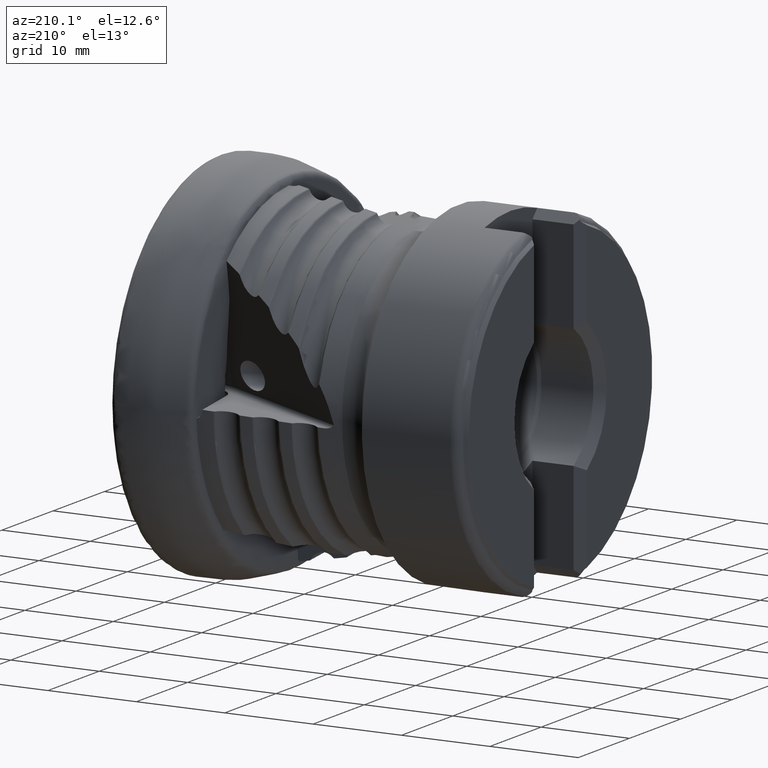
[diagram: clean part render]
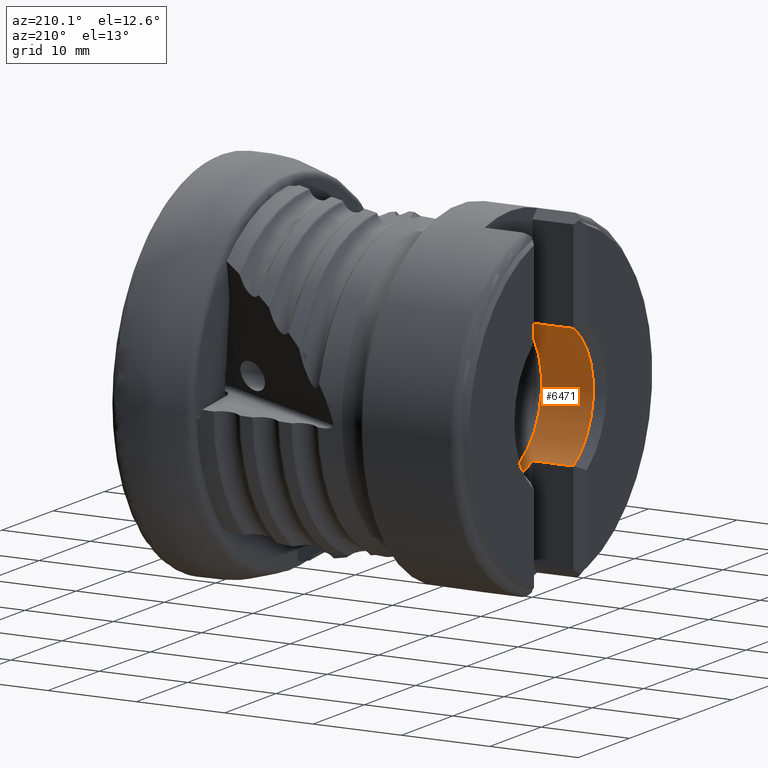
[diagram: same view with one face highlighted and labeled with its STEP entity id]
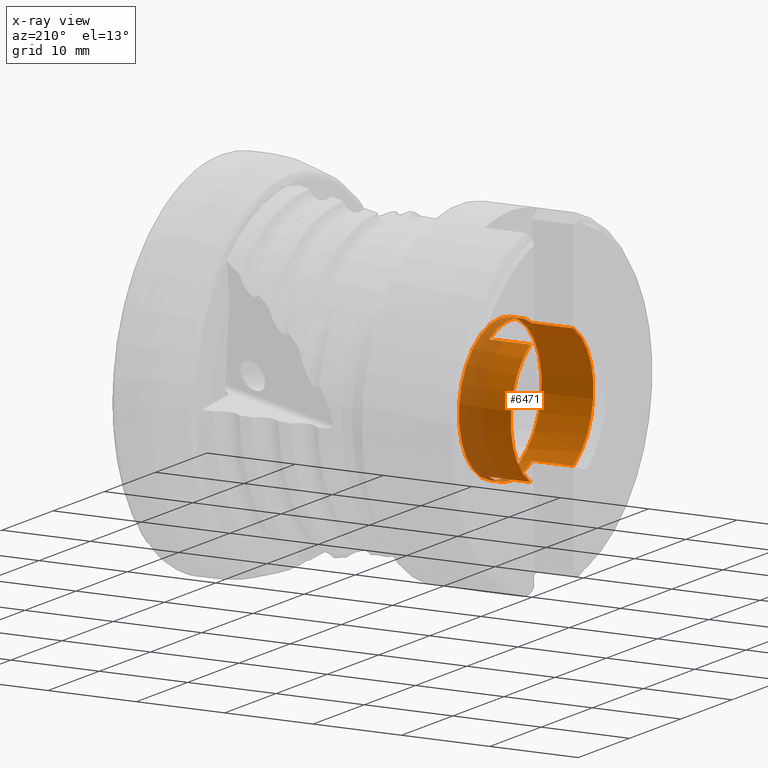
[diagram: x-ray of the same camera — body ghosted, the highlighted face saturated]
A machine part, auxiliary view. The second image highlights one B-rep face of the part: STEP entity #6471.
The next image is the same camera in x-ray: the body ghosted, the highlighted face saturated — about 26% of this face is hidden behind the body in this view.
In plain terms, the highlighted cylindrical surface (bore or boss wall) has radius 8.075 mm, axis along (1, -0, -0).
Its self-contained STEP definition (entity closure, byte-faithful):
#28 = CARTESIAN_POINT ( 'NONE',  ( 1.566847010559693400E-015, -4.199999999999992200, -6.896783670668521700 ) ) ;
#45 = ORIENTED_EDGE ( 'NONE', *, *, #5000, .T. ) ;
#64 = CYLINDRICAL_SURFACE ( 'NONE', #952, 8.074999999999994000 ) ;
#170 = CIRCLE ( 'NONE', #5270, 8.074999999999994000 ) ;
#442 = DIRECTION ( 'NONE',  ( -1.000000000000000000, 0.0000000000000000000, 0.0000000000000000000 ) ) ;
#536 = AXIS2_PLACEMENT_3D ( 'NONE', #1094, #5467, #1732 ) ;
#578 = VECTOR ( 'NONE', #3783, 1000.000000000000000 ) ;
#664 = LINE ( 'NONE', #6246, #5657 ) ;
#700 = CIRCLE ( 'NONE', #3487, 8.074999999999994000 ) ;
#706 = CARTESIAN_POINT ( 'NONE',  ( -38.04999999999999700, -4.200000000000005500, 6.896783670668512800 ) ) ;
#952 = AXIS2_PLACEMENT_3D ( 'NONE', #7216, #2910, #2854 ) ;
#1044 = VERTEX_POINT ( 'NONE', #4617 ) ;
#1061 = DIRECTION ( 'NONE',  ( -1.000000000000000000, -0.0000000000000000000, -0.0000000000000000000 ) ) ;
#1067 = LINE ( 'NONE', #4811, #4376 ) ;
#1094 = CARTESIAN_POINT ( 'NONE',  ( -38.04999999999999700, 0.0000000000000000000, 0.0000000000000000000 ) ) ;
#1169 = LINE ( 'NONE', #7389, #7418 ) ;
#1178 = VERTEX_POINT ( 'NONE', #2956 ) ;
#1224 = ORIENTED_EDGE ( 'NONE', *, *, #1465, .T. ) ;
#1463 = DIRECTION ( 'NONE',  ( -1.000000000000000000, -0.0000000000000000000, -0.0000000000000000000 ) ) ;
#1465 = EDGE_CURVE ( 'NONE', #1044, #1044, #700, .T. ) ;
#1732 = DIRECTION ( 'NONE',  ( 0.0000000000000000000, 0.0000000000000000000, -1.000000000000000000 ) ) ;
#1886 = DIRECTION ( 'NONE',  ( 1.000000000000000000, -0.0000000000000000000, -0.0000000000000000000 ) ) ;
#1914 = DIRECTION ( 'NONE',  ( 1.000000000000000000, -0.0000000000000000000, -0.0000000000000000000 ) ) ;
#1947 = FACE_OUTER_BOUND ( 'NONE', #6946, .T. ) ;
#2337 = CARTESIAN_POINT ( 'NONE',  ( -33.39999999999999900, 4.199999999999995700, -6.896783670668519900 ) ) ;
#2518 = VERTEX_POINT ( 'NONE', #2897 ) ;
#2563 = ORIENTED_EDGE ( 'NONE', *, *, #5688, .F. ) ;
#2641 = VERTEX_POINT ( 'NONE', #7972 ) ;
#2854 = DIRECTION ( 'NONE',  ( 0.0000000000000000000, 0.0000000000000000000, -1.000000000000000000 ) ) ;
#2897 = CARTESIAN_POINT ( 'NONE',  ( -38.04999999999999700, 4.199999999999997500, 6.896783670668519100 ) ) ;
#2910 = DIRECTION ( 'NONE',  ( 1.000000000000000000, -0.0000000000000000000, -0.0000000000000000000 ) ) ;
#2956 = CARTESIAN_POINT ( 'NONE',  ( -38.04999999999999700, -4.200000000000005500, -6.896783670668512800 ) ) ;
#3099 = AXIS2_PLACEMENT_3D ( 'NONE', #5648, #1914, #6269 ) ;
#3238 = DIRECTION ( 'NONE',  ( 1.000000000000000000, -0.0000000000000000000, -0.0000000000000000000 ) ) ;
#3410 = FACE_OUTER_BOUND ( 'NONE', #3729, .T. ) ;
#3487 = AXIS2_PLACEMENT_3D ( 'NONE', #6979, #3238, #7591 ) ;
#3629 = CARTESIAN_POINT ( 'NONE',  ( -38.04999999999999700, 4.199999999999997500, -6.896783670668518200 ) ) ;
#3729 = EDGE_LOOP ( 'NONE', ( #1224 ) ) ;
#3783 = DIRECTION ( 'NONE',  ( -1.000000000000000000, 0.0000000000000000000, 0.0000000000000000000 ) ) ;
#3947 = EDGE_CURVE ( 'NONE', #6630, #6545, #664, .T. ) ;
#4027 = VERTEX_POINT ( 'NONE', #6318 ) ;
#4157 = ORIENTED_EDGE ( 'NONE', *, *, #4630, .T. ) ;
#4216 = CARTESIAN_POINT ( 'NONE',  ( -33.39999999999999900, 4.199999999999995700, 6.896783670668519900 ) ) ;
#4376 = VECTOR ( 'NONE', #442, 1000.000000000000000 ) ;
#4476 = CIRCLE ( 'NONE', #5428, 8.074999999999994000 ) ;
#4617 = CARTESIAN_POINT ( 'NONE',  ( -32.18000000000000000, 0.0000000000000000000, -8.074999999999994000 ) ) ;
#4630 = EDGE_CURVE ( 'NONE', #6545, #2641, #4476, .T. ) ;
#4733 = EDGE_CURVE ( 'Kante3', #7971, #4027, #1169, .T. ) ;
#4771 = ORIENTED_EDGE ( 'NONE', *, *, #6539, .F. ) ;
#4792 = CARTESIAN_POINT ( 'NONE',  ( -33.39999999999999900, 0.0000000000000000000, 0.0000000000000000000 ) ) ;
#4811 = CARTESIAN_POINT ( 'NONE',  ( 1.566847010559690100E-015, 4.199999999999983300, 6.896783670668527000 ) ) ;
#4866 = CIRCLE ( 'NONE', #536, 8.074999999999994000 ) ;
#4896 = EDGE_CURVE ( 'NONE', #2641, #1178, #7031, .T. ) ;
#5000 = EDGE_CURVE ( 'NONE', #4027, #5306, #170, .T. ) ;
#5199 = CARTESIAN_POINT ( 'NONE',  ( -33.39999999999999900, 0.0000000000000000000, 0.0000000000000000000 ) ) ;
#5204 = ORIENTED_EDGE ( 'NONE', *, *, #4896, .T. ) ;
#5262 = EDGE_CURVE ( 'NONE', #5306, #2518, #1067, .T. ) ;
#5270 = AXIS2_PLACEMENT_3D ( 'NONE', #5199, #1463, #5826 ) ;
#5306 = VERTEX_POINT ( 'NONE', #4216 ) ;
#5425 = DIRECTION ( 'NONE',  ( 0.0000000000000000000, 0.0000000000000000000, -1.000000000000000000 ) ) ;
#5428 = AXIS2_PLACEMENT_3D ( 'NONE', #4792, #1061, #5425 ) ;
#5450 = ORIENTED_EDGE ( 'NONE', *, *, #3947, .T. ) ;
#5467 = DIRECTION ( 'NONE',  ( 1.000000000000000000, -0.0000000000000000000, -0.0000000000000000000 ) ) ;
#5483 = DIRECTION ( 'NONE',  ( 1.000000000000000000, -0.0000000000000000000, -0.0000000000000000000 ) ) ;
#5570 = ORIENTED_EDGE ( 'NONE', *, *, #5262, .T. ) ;
#5648 = CARTESIAN_POINT ( 'NONE',  ( -38.04999999999999700, 0.0000000000000000000, 0.0000000000000000000 ) ) ;
#5657 = VECTOR ( 'NONE', #1886, 1000.000000000000000 ) ;
#5688 = EDGE_CURVE ( 'NONE', #6630, #2518, #5944, .T. ) ;
#5826 = DIRECTION ( 'NONE',  ( 0.0000000000000000000, 0.0000000000000000000, -1.000000000000000000 ) ) ;
#5944 = CIRCLE ( 'NONE', #3099, 8.074999999999994000 ) ;
#6246 = CARTESIAN_POINT ( 'NONE',  ( 1.566847010559690100E-015, 4.199999999999983300, -6.896783670668527000 ) ) ;
#6269 = DIRECTION ( 'NONE',  ( 0.0000000000000000000, 0.0000000000000000000, -1.000000000000000000 ) ) ;
#6318 = CARTESIAN_POINT ( 'NONE',  ( -33.39999999999999900, -4.200000000000003700, 6.896783670668524400 ) ) ;
#6471 = ADVANCED_FACE ( 'NONE', ( #1947, #3410 ), #64, .F. ) ;
#6539 = EDGE_CURVE ( 'NONE', #7971, #1178, #4866, .T. ) ;
#6545 = VERTEX_POINT ( 'NONE', #2337 ) ;
#6630 = VERTEX_POINT ( 'NONE', #3629 ) ;
#6892 = ORIENTED_EDGE ( 'NONE', *, *, #4733, .T. ) ;
#6946 = EDGE_LOOP ( 'NONE', ( #2563, #5450, #4157, #5204, #4771, #6892, #45, #5570 ) ) ;
#6979 = CARTESIAN_POINT ( 'NONE',  ( -32.18000000000000000, 0.0000000000000000000, 0.0000000000000000000 ) ) ;
#7031 = LINE ( 'NONE', #28, #578 ) ;
#7216 = CARTESIAN_POINT ( 'NONE',  ( 0.0000000000000000000, 0.0000000000000000000, 0.0000000000000000000 ) ) ;
#7389 = CARTESIAN_POINT ( 'NONE',  ( 1.566847010559693400E-015, -4.199999999999992200, 6.896783670668521700 ) ) ;
#7418 = VECTOR ( 'NONE', #5483, 1000.000000000000000 ) ;
#7591 = DIRECTION ( 'NONE',  ( 0.0000000000000000000, 0.0000000000000000000, -1.000000000000000000 ) ) ;
#7971 = VERTEX_POINT ( 'NONE', #706 ) ;
#7972 = CARTESIAN_POINT ( 'NONE',  ( -33.39999999999999900, -4.200000000000003700, -6.896783670668520800 ) ) ;